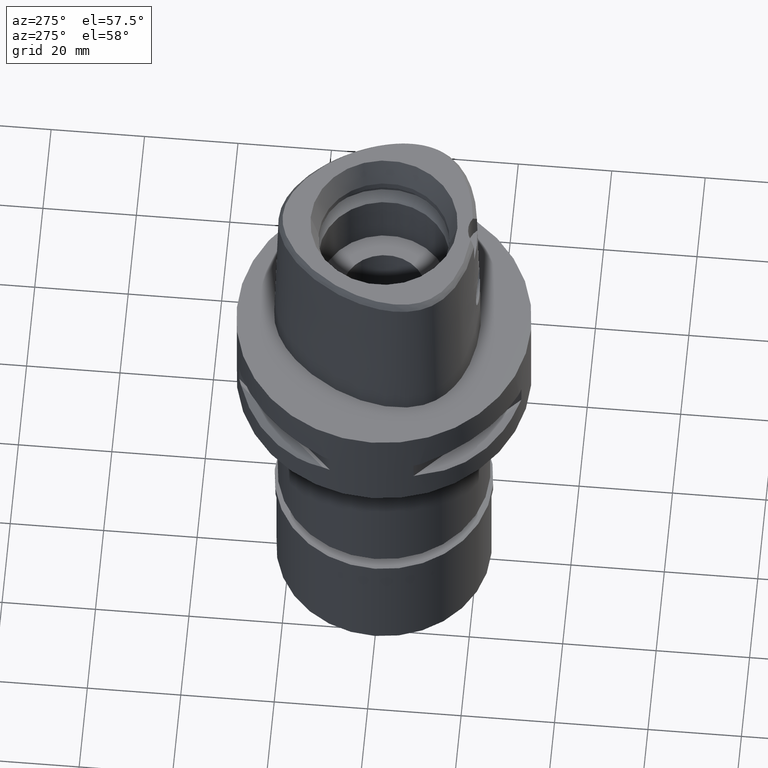
[diagram: clean part render]
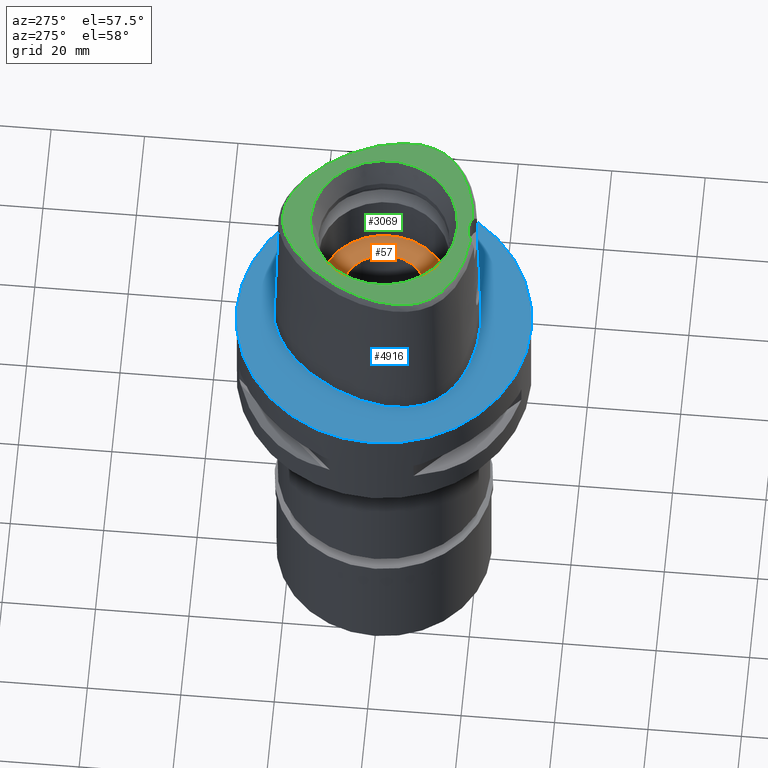
[diagram: same view with three faces highlighted in distinct colors, each labeled with its STEP entity id]
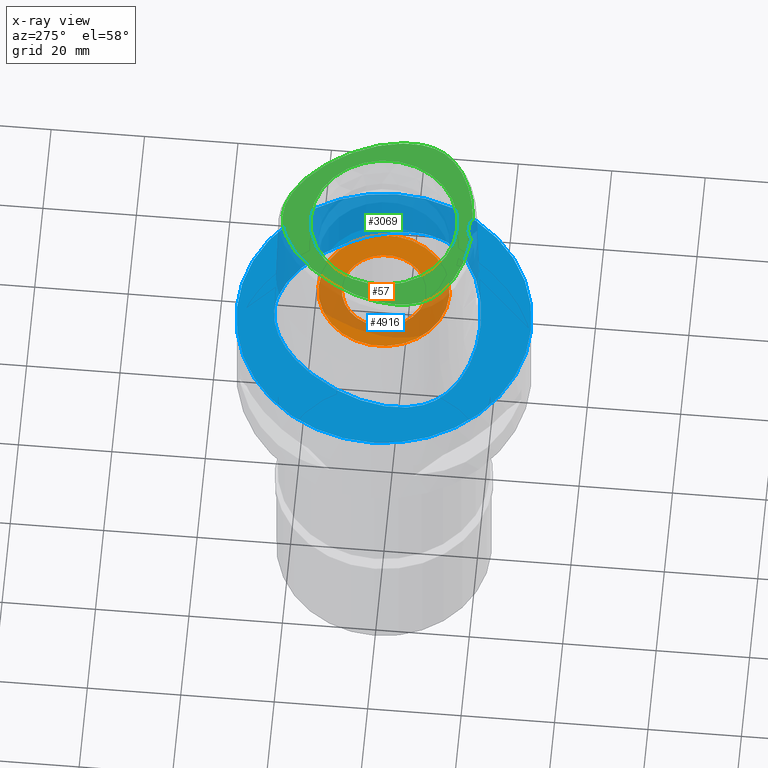
[diagram: x-ray of the same camera — body ghosted, the three highlighted faces saturated]
A machine part, auxiliary view with three faces highlighted in distinct colors.
The next image is the same camera in x-ray (body ghosted, the three faces saturated) — at least one of them is partly hidden behind the body in this view.
Their STEP definitions:

[orange] entity #57 — the highlighted planar face has unit normal (0, 0, -1).
#57 = ADVANCED_FACE ( 'NONE', ( #2623, #292 ), #1854, .F. ) ;
#292 = FACE_BOUND ( 'NONE', #1363, .T. ) ;
#345 = ORIENTED_EDGE ( 'NONE', *, *, #1465, .F. ) ;
#821 = EDGE_CURVE ( 'NONE', #4076, #2327, #2820, .T. ) ;
#1003 = CARTESIAN_POINT ( 'NONE',  ( 0.0000000000000000000, -9.000000000000000000, 11.00000000000000000 ) ) ;
#1166 = DIRECTION ( 'NONE',  ( 0.0000000000000000000, -1.000000000000000000, 0.0000000000000000000 ) ) ;
#1208 = DIRECTION ( 'NONE',  ( 0.0000000000000000000, 0.0000000000000000000, 1.000000000000000000 ) ) ;
#1234 = CIRCLE ( 'NONE', #2144, 14.00000000000000000 ) ;
#1295 = EDGE_CURVE ( 'NONE', #1314, #1390, #1234, .T. ) ;
#1314 = VERTEX_POINT ( 'NONE', #3763 ) ;
#1363 = EDGE_LOOP ( 'NONE', ( #4913, #3214 ) ) ;
#1390 = VERTEX_POINT ( 'NONE', #4372 ) ;
#1407 = CARTESIAN_POINT ( 'NONE',  ( 0.0000000000000000000, 0.0000000000000000000, 11.00000000000000000 ) ) ;
#1447 = CARTESIAN_POINT ( 'NONE',  ( 0.0000000000000000000, 9.000000000000000000, 11.00000000000000000 ) ) ;
#1465 = EDGE_CURVE ( 'NONE', #1390, #1314, #4838, .T. ) ;
#1560 = EDGE_CURVE ( 'NONE', #2327, #4076, #3577, .T. ) ;
#1805 = CARTESIAN_POINT ( 'NONE',  ( 0.0000000000000000000, 0.0000000000000000000, 11.00000000000000000 ) ) ;
#1854 = PLANE ( 'NONE',  #2412 ) ;
#1875 = CARTESIAN_POINT ( 'NONE',  ( 0.0000000000000000000, 0.0000000000000000000, 11.00000000000000000 ) ) ;
#1920 = AXIS2_PLACEMENT_3D ( 'NONE', #4339, #1208, #3209 ) ;
#2144 = AXIS2_PLACEMENT_3D ( 'NONE', #1407, #2957, #2260 ) ;
#2234 = AXIS2_PLACEMENT_3D ( 'NONE', #3443, #4247, #1166 ) ;
#2260 = DIRECTION ( 'NONE',  ( 0.0000000000000000000, -1.000000000000000000, 0.0000000000000000000 ) ) ;
#2327 = VERTEX_POINT ( 'NONE', #1003 ) ;
#2412 = AXIS2_PLACEMENT_3D ( 'NONE', #1875, #2703, #3380 ) ;
#2623 = FACE_OUTER_BOUND ( 'NONE', #3639, .T. ) ;
#2703 = DIRECTION ( 'NONE',  ( 0.0000000000000000000, 0.0000000000000000000, -1.000000000000000000 ) ) ;
#2820 = CIRCLE ( 'NONE', #1920, 9.000000000000000000 ) ;
#2957 = DIRECTION ( 'NONE',  ( 0.0000000000000000000, 0.0000000000000000000, -1.000000000000000000 ) ) ;
#2979 = DIRECTION ( 'NONE',  ( 0.0000000000000000000, 1.000000000000000000, 0.0000000000000000000 ) ) ;
#3209 = DIRECTION ( 'NONE',  ( 0.0000000000000000000, 1.000000000000000000, 0.0000000000000000000 ) ) ;
#3214 = ORIENTED_EDGE ( 'NONE', *, *, #821, .F. ) ;
#3380 = DIRECTION ( 'NONE',  ( 0.0000000000000000000, -1.000000000000000000, 0.0000000000000000000 ) ) ;
#3443 = CARTESIAN_POINT ( 'NONE',  ( 0.0000000000000000000, 0.0000000000000000000, 11.00000000000000000 ) ) ;
#3577 = CIRCLE ( 'NONE', #2234, 9.000000000000000000 ) ;
#3639 = EDGE_LOOP ( 'NONE', ( #4272, #345 ) ) ;
#3727 = AXIS2_PLACEMENT_3D ( 'NONE', #1805, #4442, #2979 ) ;
#3763 = CARTESIAN_POINT ( 'NONE',  ( 0.0000000000000000000, -14.00000000000000000, 11.00000000000000000 ) ) ;
#4076 = VERTEX_POINT ( 'NONE', #1447 ) ;
#4247 = DIRECTION ( 'NONE',  ( 0.0000000000000000000, 0.0000000000000000000, 1.000000000000000000 ) ) ;
#4272 = ORIENTED_EDGE ( 'NONE', *, *, #1295, .F. ) ;
#4339 = CARTESIAN_POINT ( 'NONE',  ( 0.0000000000000000000, 0.0000000000000000000, 11.00000000000000000 ) ) ;
#4372 = CARTESIAN_POINT ( 'NONE',  ( 0.0000000000000000000, 14.00000000000000000, 11.00000000000000000 ) ) ;
#4442 = DIRECTION ( 'NONE',  ( 0.0000000000000000000, 0.0000000000000000000, -1.000000000000000000 ) ) ;
#4838 = CIRCLE ( 'NONE', #3727, 14.00000000000000000 ) ;
#4913 = ORIENTED_EDGE ( 'NONE', *, *, #1560, .F. ) ;

[blue] entity #4916 — the highlighted planar face has unit normal (0, 0, -1).
#37 = CARTESIAN_POINT ( 'NONE',  ( 20.93173253054598959, -10.60431640999530423, -3.683900112044780073E-07 ) ) ;
#252 = CARTESIAN_POINT ( 'NONE',  ( -19.64947365048212546, -12.82525390031862322, 4.026046259342132977E-07 ) ) ;
#310 = CARTESIAN_POINT ( 'NONE',  ( 0.0000000000000000000, 0.0000000000000000000, 0.0000000000000000000 ) ) ;
#335 = CARTESIAN_POINT ( 'NONE',  ( 0.8548392429611767485, 23.47500000921093388, -3.683900112044780073E-07 ) ) ;
#424 = CIRCLE ( 'NONE', #1725, 31.50000000000000000 ) ;
#430 = CARTESIAN_POINT ( 'NONE',  ( 16.95889173165912212, -15.67838867914221268, -3.683900112044780073E-07 ) ) ;
#481 = CARTESIAN_POINT ( 'NONE',  ( 5.790292379824000158E-11, 23.47499999999000053, 1.448100898452999714E-13 ) ) ;
#506 = CARTESIAN_POINT ( 'NONE',  ( -20.93173251290741277, -10.60431640215420046, 4.026046259342132977E-07 ) ) ;
#656 = DIRECTION ( 'NONE',  ( 0.0000000000000000000, 0.0000000000000000000, -1.000000000000000000 ) ) ;
#742 = CARTESIAN_POINT ( 'NONE',  ( 22.05732875237952229, -6.847636720065677807, -3.683900112044780073E-07 ) ) ;
#890 = CARTESIAN_POINT ( 'NONE',  ( -22.05732873321290199, -6.847636717311719856, 4.026046259342132977E-07 ) ) ;
#950 = CARTESIAN_POINT ( 'NONE',  ( -14.40795638184702909, 15.64093749346970341, 4.026046259342132977E-07 ) ) ;
#971 = CARTESIAN_POINT ( 'NONE',  ( -14.67337963919815991, -17.21410155373228790, 4.026046259342132977E-07 ) ) ;
#996 = DIRECTION ( 'NONE',  ( 0.0000000000000000000, -1.000000000000000000, 0.0000000000000000000 ) ) ;
#1112 = EDGE_CURVE ( 'NONE', #3914, #3750, #1158, .T. ) ;
#1135 = VERTEX_POINT ( 'NONE', #3395 ) ;
#1153 = EDGE_CURVE ( 'NONE', #1135, #3385, #424, .T. ) ;
#1158 = B_SPLINE_CURVE_WITH_KNOTS ( 'NONE', 3,
 ( #481, #2861, #1659, #1324, #2884, #4378, #950, #3197, #2843, #3632, #4329, #890, #2123, #506, #2075, #252, #3006, #1868, #971, #4452, #4903, #4480, #2199 ),
 .UNSPECIFIED., .F., .F.,
 ( 4, 1, 1, 1, 1, 1, 1, 1, 1, 1, 1, 1, 1, 1, 1, 1, 1, 1, 1, 1, 4 ),
 ( 0.0000000000000000000, 0.04166666666755999837, 0.08333333333417000666, 0.1250000000007999990, 0.1666666666674000152, 0.2500000000006000200, 0.3333333333337999971, 0.4166666666671000052, 0.5000000000004000134, 0.5416666666670000296, 0.5833333333336000459, 0.6250000000001999512, 0.6458333333335000148, 0.6666666666668999985, 0.6875000000001000311, 0.7083333333333999837, 0.7500000000001000311, 0.7916666666667000474, 0.8333333333333000637, 0.9166666666666000163, 1.000000000000000000 ),
 .UNSPECIFIED. ) ;
#1170 = CARTESIAN_POINT ( 'NONE',  ( 18.56841065812985647, -14.16937988916094859, -3.683900112044780073E-07 ) ) ;
#1190 = CARTESIAN_POINT ( 'NONE',  ( 20.34961799355907175, -11.74885742648655196, -3.683900112044780073E-07 ) ) ;
#1293 = FACE_BOUND ( 'NONE', #3506, .T. ) ;
#1307 = ORIENTED_EDGE ( 'NONE', *, *, #1153, .F. ) ;
#1324 = CARTESIAN_POINT ( 'NONE',  ( -5.098437013526791795, 22.52602538124561349, 4.026046259342132977E-07 ) ) ;
#1362 = EDGE_CURVE ( 'NONE', #3750, #3914, #1754, .T. ) ;
#1514 = CARTESIAN_POINT ( 'NONE',  ( 10.74572891654371531, 19.17433594459337698, -3.683900112044780073E-07 ) ) ;
#1581 = CARTESIAN_POINT ( 'NONE',  ( 18.06826689328364210, 10.43171875463482223, -3.683900112044780073E-07 ) ) ;
#1631 = CARTESIAN_POINT ( 'NONE',  ( 0.0000000000000000000, 31.50000000000000000, 0.0000000000000000000 ) ) ;
#1659 = CARTESIAN_POINT ( 'NONE',  ( -2.564517724888109917, 23.29328124008968004, 4.026046259342132977E-07 ) ) ;
#1725 = AXIS2_PLACEMENT_3D ( 'NONE', #310, #656, #996 ) ;
#1754 = B_SPLINE_CURVE_WITH_KNOTS ( 'NONE', 3,
 ( #3845, #4252, #4597, #3805, #3827, #430, #1170, #2696, #1190, #37, #3447, #742, #2307, #4928, #3051, #1581, #2741, #1514, #1893, #3868, #3121, #335, #4232 ),
 .UNSPECIFIED., .F., .F.,
 ( 4, 1, 1, 1, 1, 1, 1, 1, 1, 1, 1, 1, 1, 1, 1, 1, 1, 1, 1, 1, 4 ),
 ( 0.0000000000000000000, 0.08333333333344000726, 0.1666666666668000230, 0.2083333333333000081, 0.2500000000000000000, 0.2916666666666999919, 0.3125000000000000000, 0.3333333333333000081, 0.3541666666666999919, 0.3750000000000000000, 0.4166666666666000163, 0.4583333333332000326, 0.4999999999998999689, 0.5833333333332000326, 0.6666666666664999852, 0.7499999999998000488, 0.8333333333329999704, 0.8749999999997000177, 0.9166666666664000651, 0.9583333333329999704, 1.000000000000000000 ),
 .UNSPECIFIED. ) ;
#1862 = EDGE_CURVE ( 'NONE', #3385, #1135, #3429, .T. ) ;
#1868 = CARTESIAN_POINT ( 'NONE',  ( -16.95889171968835640, -15.67838866392945718, 4.026046259342132977E-07 ) ) ;
#1893 = CARTESIAN_POINT ( 'NONE',  ( 7.571159439016390102, 21.31457032046966660, -3.683900112044780073E-07 ) ) ;
#2073 = CARTESIAN_POINT ( 'NONE',  ( -1.131694550465999992E-11, -20.67499999999999716, 1.477336771434999891E-13 ) ) ;
#2075 = CARTESIAN_POINT ( 'NONE',  ( -20.34961797683439855, -11.74885741682672169, 4.026046259342132977E-07 ) ) ;
#2123 = CARTESIAN_POINT ( 'NONE',  ( -21.55524825041666048, -8.996025387747538460, 4.026046259342132977E-07 ) ) ;
#2159 = ORIENTED_EDGE ( 'NONE', *, *, #1362, .F. ) ;
#2199 = CARTESIAN_POINT ( 'NONE',  ( -1.131694550465999992E-11, -20.67499999999999716, 1.477336771434999891E-13 ) ) ;
#2307 = CARTESIAN_POINT ( 'NONE',  ( 22.24453908778256661, -4.100468749945640035, -3.683900112044780073E-07 ) ) ;
#2558 = FACE_OUTER_BOUND ( 'NONE', #2875, .T. ) ;
#2696 = CARTESIAN_POINT ( 'NONE',  ( 19.64947366609843371, -12.82525391167557771, -3.683900112044780073E-07 ) ) ;
#2741 = CARTESIAN_POINT ( 'NONE',  ( 14.40795639665963357, 15.64093750597916532, -3.683900112044780073E-07 ) ) ;
#2825 = ORIENTED_EDGE ( 'NONE', *, *, #1112, .F. ) ;
#2843 = CARTESIAN_POINT ( 'NONE',  ( -20.74942739927268320, 4.657187496567886775, 4.026046259342132977E-07 ) ) ;
#2857 = PLANE ( 'NONE',  #3880 ) ;
#2861 = CARTESIAN_POINT ( 'NONE',  ( -0.8548392415864773941, 23.47499998994174675, 4.026046259342132977E-07 ) ) ;
#2875 = EDGE_LOOP ( 'NONE', ( #3887, #1307 ) ) ;
#2881 = AXIS2_PLACEMENT_3D ( 'NONE', #3766, #3682, #4799 ) ;
#2884 = CARTESIAN_POINT ( 'NONE',  ( -7.571159429252344530, 21.31457030378234663, 4.026046259342132977E-07 ) ) ;
#2925 = DIRECTION ( 'NONE',  ( 0.0000000000000000000, 0.0000000000000000000, -1.000000000000000000 ) ) ;
#3006 = CARTESIAN_POINT ( 'NONE',  ( -18.56841064408797237, -14.16937987586342196, 4.026046259342132977E-07 ) ) ;
#3051 = CARTESIAN_POINT ( 'NONE',  ( 20.74942741751540254, 4.657187503139859963, -3.683900112044780073E-07 ) ) ;
#3121 = CARTESIAN_POINT ( 'NONE',  ( 2.564517728849268430, 23.29328125907017721, -3.683900112044780073E-07 ) ) ;
#3197 = CARTESIAN_POINT ( 'NONE',  ( -18.06826687651420471, 10.43171874494323426, 4.026046259342132977E-07 ) ) ;
#3385 = VERTEX_POINT ( 'NONE', #1631 ) ;
#3395 = CARTESIAN_POINT ( 'NONE',  ( 0.0000000000000000000, -31.50000000000000000, 0.0000000000000000000 ) ) ;
#3429 = CIRCLE ( 'NONE', #2881, 31.50000000000000000 ) ;
#3447 = CARTESIAN_POINT ( 'NONE',  ( 21.55524826895371149, -8.996025393257914615, -3.683900112044780073E-07 ) ) ;
#3506 = EDGE_LOOP ( 'NONE', ( #2825, #2159 ) ) ;
#3632 = CARTESIAN_POINT ( 'NONE',  ( -21.97832646790009292, -0.2810937517609410907, 4.026046259342132977E-07 ) ) ;
#3682 = DIRECTION ( 'NONE',  ( 0.0000000000000000000, 0.0000000000000000000, -1.000000000000000000 ) ) ;
#3750 = VERTEX_POINT ( 'NONE', #2073 ) ;
#3766 = CARTESIAN_POINT ( 'NONE',  ( 0.0000000000000000000, 0.0000000000000000000, 0.0000000000000000000 ) ) ;
#3805 = CARTESIAN_POINT ( 'NONE',  ( 11.23259757044373508, -18.89324219620272061, -3.683900112044780073E-07 ) ) ;
#3827 = CARTESIAN_POINT ( 'NONE',  ( 14.67337964876933931, -17.21410157052679324, -3.683900112044780073E-07 ) ) ;
#3845 = CARTESIAN_POINT ( 'NONE',  ( -1.131694550465999992E-11, -20.67499999999999716, 1.477336771434999891E-13 ) ) ;
#3868 = CARTESIAN_POINT ( 'NONE',  ( 5.098437020721408253, 22.52602539921558034, -3.683900112044780073E-07 ) ) ;
#3880 = AXIS2_PLACEMENT_3D ( 'NONE', #4741, #2925, #4019 ) ;
#3887 = ORIENTED_EDGE ( 'NONE', *, *, #1862, .F. ) ;
#3914 = VERTEX_POINT ( 'NONE', #4821 ) ;
#4019 = DIRECTION ( 'NONE',  ( 0.0000000000000000000, -1.000000000000000000, 0.0000000000000000000 ) ) ;
#4232 = CARTESIAN_POINT ( 'NONE',  ( 5.790292379824000158E-11, 23.47499999999000053, 1.448100898452999714E-13 ) ) ;
#4252 = CARTESIAN_POINT ( 'NONE',  ( 2.113823673614410925, -20.67500000920435355, -3.683900112044780073E-07 ) ) ;
#4329 = CARTESIAN_POINT ( 'NONE',  ( -22.24453906844714624, -4.100468750059308221, 4.026046259342132977E-07 ) ) ;
#4378 = CARTESIAN_POINT ( 'NONE',  ( -10.74572890407997683, 19.17433592974781220, 4.026046259342132977E-07 ) ) ;
#4452 = CARTESIAN_POINT ( 'NONE',  ( -11.23259756381914087, -18.89324217799171635, 4.026046259342132977E-07 ) ) ;
#4480 = CARTESIAN_POINT ( 'NONE',  ( -2.113823672466968784, -20.67499998993794108, 4.026046259342132977E-07 ) ) ;
#4597 = CARTESIAN_POINT ( 'NONE',  ( 6.341471020848075568, -20.29812500912274231, -3.683900112044780073E-07 ) ) ;
#4741 = CARTESIAN_POINT ( 'NONE',  ( 0.0000000000000000000, 0.0000000000000000000, 0.0000000000000000000 ) ) ;
#4799 = DIRECTION ( 'NONE',  ( 0.0000000000000000000, 1.000000000000000000, 0.0000000000000000000 ) ) ;
#4821 = CARTESIAN_POINT ( 'NONE',  ( 5.790292379824000158E-11, 23.47499999999000053, 1.448100898452999714E-13 ) ) ;
#4903 = CARTESIAN_POINT ( 'NONE',  ( -6.341471017423541134, -20.29812499004066950, 4.026046259342132977E-07 ) ) ;
#4916 = ADVANCED_FACE ( 'NONE', ( #2558, #1293 ), #2857, .F. ) ;
#4928 = CARTESIAN_POINT ( 'NONE',  ( 21.97832648698838653, -0.2810937483887103738, -3.683900112044780073E-07 ) ) ;

[green] entity #3069 — the highlighted planar face has unit normal (0, 0, 1).
#7 = CARTESIAN_POINT ( 'NONE',  ( 13.33890749495946082, -15.84912955619473252, 37.99999999999260325 ) ) ;
#76 = VERTEX_POINT ( 'NONE', #4489 ) ;
#92 = CARTESIAN_POINT ( 'NONE',  ( -12.37132652997592253, -16.34104299088263801, 37.99999999999596412 ) ) ;
#112 = CARTESIAN_POINT ( 'NONE',  ( -10.17136073855078138, -17.24644253470266264, 38.00000000000095213 ) ) ;
#159 = CARTESIAN_POINT ( 'NONE',  ( -18.31748213707501804, -11.58791794387733631, 37.99999999999634070 ) ) ;
#183 = CARTESIAN_POINT ( 'NONE',  ( -13.33457781970442113, -15.85148397417248134, 38.00000000000152056 ) ) ;
#245 = CARTESIAN_POINT ( 'NONE',  ( 6.760281394351698836, 19.65404668910019481, 37.99999999999393907 ) ) ;
#255 = DIRECTION ( 'NONE',  ( 0.0000000000000000000, 0.0000000000000000000, 1.000000000000000000 ) ) ;
#273 = CARTESIAN_POINT ( 'NONE',  ( 10.48999540691104038, 16.86597469870106991, 38.00000000000387246 ) ) ;
#286 = CARTESIAN_POINT ( 'NONE',  ( -11.46564124494043746, 15.92741340513062553, 37.99999999999576517 ) ) ;
#299 = CARTESIAN_POINT ( 'NONE',  ( 4.715576077242126019, -18.56597918135396696, 37.99999999999206324 ) ) ;
#351 = CARTESIAN_POINT ( 'NONE',  ( 18.79595068776229994, 4.257753965102050842, 37.99999999999678124 ) ) ;
#400 = CARTESIAN_POINT ( 'NONE',  ( 19.94150023627998181, 0.2261566111946440860, 38.00000000000292033 ) ) ;
#419 = CARTESIAN_POINT ( 'NONE',  ( 0.0000000000000000000, -23.00000000000000000, 38.00000000000000000 ) ) ;
#484 = CARTESIAN_POINT ( 'NONE',  ( -2.682279906006999948, -18.78035848609999903, 38.00000000000000000 ) ) ;
#534 = CARTESIAN_POINT ( 'NONE',  ( -6.188376196366788484, -18.31830638231839004, 37.99999999999528200 ) ) ;
#571 = CARTESIAN_POINT ( 'NONE',  ( -3.470663397156000320E-11, 21.68728795390000030, 38.00000000000000000 ) ) ;
#602 = CARTESIAN_POINT ( 'NONE',  ( 3.482188079160203120, 21.13472718027299635, 37.99999999999566569 ) ) ;
#611 = CARTESIAN_POINT ( 'NONE',  ( -19.94188961899538981, 0.2242544969875431282, 38.00000000000132871 ) ) ;
#634 = CARTESIAN_POINT ( 'NONE',  ( -14.34402387965755921, 12.54761970512386959, 38.00000000000101608 ) ) ;
#637 = ORIENTED_EDGE ( 'NONE', *, *, #1797, .F. ) ;
#651 = CARTESIAN_POINT ( 'NONE',  ( 9.524842839488572466, 17.70516372194705212, 37.99999999999959499 ) ) ;
#657 = CIRCLE ( 'NONE', #2632, 15.71487483155999776 ) ;
#659 = CARTESIAN_POINT ( 'NONE',  ( -7.655222869371539396, 19.09452359226523654, 37.99999999999497646 ) ) ;
#676 = CARTESIAN_POINT ( 'NONE',  ( 20.38292172607750175, -3.276278498261604444, 37.99999999999442224 ) ) ;
#687 = VERTEX_POINT ( 'NONE', #2946 ) ;
#695 = ORIENTED_EDGE ( 'NONE', *, *, #2170, .F. ) ;
#708 = CARTESIAN_POINT ( 'NONE',  ( 18.31883910943124505, -11.58595831188059044, 37.99999999999275246 ) ) ;
#733 = CARTESIAN_POINT ( 'NONE',  ( 20.15982952132045014, -1.007721426051377156, 37.99999999999801048 ) ) ;
#735 = EDGE_CURVE ( 'NONE', #3203, #687, #3967, .T. ) ;
#747 = AXIS2_PLACEMENT_3D ( 'NONE', #2568, #4057, #3316 ) ;
#892 = CARTESIAN_POINT ( 'NONE',  ( -17.91005512243885889, -12.13778127739600166, 37.99999999999938893 ) ) ;
#920 = CARTESIAN_POINT ( 'NONE',  ( -8.930096025510319890, -17.65000298921263422, 37.99999999999889866 ) ) ;
#952 = CARTESIAN_POINT ( 'NONE',  ( -20.38301517463061785, -3.278344853328291286, 37.99999999999911182 ) ) ;
#999 = FACE_BOUND ( 'NONE', #2001, .T. ) ;
#1053 = CARTESIAN_POINT ( 'NONE',  ( -10.48962422759182900, 16.86631853279407167, 38.00000000000438405 ) ) ;
#1066 = CARTESIAN_POINT ( 'NONE',  ( 18.67722910598283903, -11.03372143228491353, 38.00000000000095923 ) ) ;
#1095 = CARTESIAN_POINT ( 'NONE',  ( 3.529311563348269676, -18.70747079909999755, 38.00000000000121503 ) ) ;
#1143 = CARTESIAN_POINT ( 'NONE',  ( 19.78323211893031441, -8.541156231035326840, 37.99999999999771205 ) ) ;
#1229 = DIRECTION ( 'NONE',  ( 0.0000000000000000000, 0.0000000000000000000, 1.000000000000000000 ) ) ;
#1244 = CIRCLE ( 'NONE', #2962, 15.71487483155999776 ) ;
#1250 = AXIS2_PLACEMENT_3D ( 'NONE', #419, #1229, #3087 ) ;
#1278 = CARTESIAN_POINT ( 'NONE',  ( -16.36032397153661933, -13.76458520345065928, 38.00000000000331113 ) ) ;
#1300 = CARTESIAN_POINT ( 'NONE',  ( -19.54919922642046970, -9.228169790568490072, 38.00000000000421352 ) ) ;
#1440 = CARTESIAN_POINT ( 'NONE',  ( -19.26324493738847465, 2.868570891456926120, 38.00000000000517986 ) ) ;
#1456 = CARTESIAN_POINT ( 'NONE',  ( 18.99619228226644907, -10.46780014453393726, 37.99999999999373301 ) ) ;
#1464 = CARTESIAN_POINT ( 'NONE',  ( -19.64434054693132836, 1.520253387635282838, 37.99999999999818812 ) ) ;
#1481 = CARTESIAN_POINT ( 'NONE',  ( 20.30478359881725936, -2.175347700950375884, 37.99999999999636913 ) ) ;
#1490 = CARTESIAN_POINT ( 'NONE',  ( -5.893543501601000045, 20.13235399352068100, 38.00000000000499512 ) ) ;
#1506 = CARTESIAN_POINT ( 'NONE',  ( 10.17751632998299449, -17.24426134458749615, 37.99999999999722178 ) ) ;
#1548 = CARTESIAN_POINT ( 'NONE',  ( 6.196495988003671407, -18.31673538865212691, 37.99999999999739941 ) ) ;
#1638 = CARTESIAN_POINT ( 'NONE',  ( -18.67608643721371919, -11.03561202291037802, 38.00000000000368061 ) ) ;
#1663 = CARTESIAN_POINT ( 'NONE',  ( -14.21001600787407604, -15.34519100085834609, 38.00000000000028422 ) ) ;
#1686 = CARTESIAN_POINT ( 'NONE',  ( -16.93638123745061108, -13.22593246128015743, 37.99999999999821654 ) ) ;
#1705 = CARTESIAN_POINT ( 'NONE',  ( -18.99520880203717965, -10.46968343925968448, 38.00000000000205347 ) ) ;
#1767 = ORIENTED_EDGE ( 'NONE', *, *, #735, .F. ) ;
#1783 = CARTESIAN_POINT ( 'NONE',  ( -8.578220530113444653, 18.44656747109421246, 38.00000000000587619 ) ) ;
#1784 = FACE_OUTER_BOUND ( 'NONE', #3499, .T. ) ;
#1792 = VERTEX_POINT ( 'NONE', #3271 ) ;
#1797 = EDGE_CURVE ( 'NONE', #1792, #3203, #4614, .T. ) ;
#1814 = CARTESIAN_POINT ( 'NONE',  ( -18.79649882724537591, 4.256255933891296195, 37.99999999999789679 ) ) ;
#1847 = CARTESIAN_POINT ( 'NONE',  ( -9.524337278001096863, 17.70558492631262482, 38.00000000000197531 ) ) ;
#1861 = CARTESIAN_POINT ( 'NONE',  ( 20.40062138794955615, -4.309334958867887977, 38.00000000000271427 ) ) ;
#1870 = CARTESIAN_POINT ( 'NONE',  ( -6.759433772716949562, 19.65454812512999894, 37.99999999999428013 ) ) ;
#1909 = CARTESIAN_POINT ( 'NONE',  ( 13.40430406168697353, 13.76274261013511158, 38.00000000000053291 ) ) ;
#1911 = CIRCLE ( 'NONE', #1250, 5.000000000000000888 ) ;
#1925 = EDGE_CURVE ( 'NONE', #76, #4344, #1244, .T. ) ;
#1956 = CARTESIAN_POINT ( 'NONE',  ( 19.54993126781717550, -9.226212439886353422, 37.99999999999423039 ) ) ;
#1966 = CARTESIAN_POINT ( 'NONE',  ( -3.470663397156000320E-11, 21.68728795390000030, 38.00000000000000000 ) ) ;
#2001 = EDGE_LOOP ( 'NONE', ( #4336, #2540 ) ) ;
#2048 = CARTESIAN_POINT ( 'NONE',  ( -2.841965291530441196, -18.76757795571486298, 37.99999999999776890 ) ) ;
#2125 = CARTESIAN_POINT ( 'NONE',  ( -4.706994425064818799, -18.56721852572750819, 38.00000000000219558 ) ) ;
#2140 = CARTESIAN_POINT ( 'NONE',  ( 0.6513209347955639661, 21.67370899611953661, 37.99999999999931077 ) ) ;
#2151 = CARTESIAN_POINT ( 'NONE',  ( -17.60426951086705927, 7.098774535280972131, 37.99999999999651124 ) ) ;
#2165 = CARTESIAN_POINT ( 'NONE',  ( 4.255661039972462589, 20.86618068829741901, 37.99999999999237588 ) ) ;
#2170 = EDGE_CURVE ( 'NONE', #687, #1792, #1911, .T. ) ;
#2176 = CARTESIAN_POINT ( 'NONE',  ( -18.24302769442231664, 5.671232572957991991, 37.99999999999904077 ) ) ;
#2229 = CARTESIAN_POINT ( 'NONE',  ( -3.481017203588835596, 21.13509756881371615, 37.99999999999744915 ) ) ;
#2251 = CARTESIAN_POINT ( 'NONE',  ( 20.15127154947656507, -7.022178451341295258, 37.99999999999887024 ) ) ;
#2262 = CARTESIAN_POINT ( 'NONE',  ( -4.254559144977184459, 20.86660163697170844, 37.99999999999787548 ) ) ;
#2275 = CARTESIAN_POINT ( 'NONE',  ( 12.44125753246769861, 14.89118158853800189, 37.99999999999828759 ) ) ;
#2302 = CARTESIAN_POINT ( 'NONE',  ( 19.64387775267994840, 1.522048414458169407, 37.99999999999673150 ) ) ;
#2492 = CARTESIAN_POINT ( 'NONE',  ( -19.78262210840519231, -8.543146992552278718, 38.00000000000375167 ) ) ;
#2540 = ORIENTED_EDGE ( 'NONE', *, *, #3155, .F. ) ;
#2568 = CARTESIAN_POINT ( 'NONE',  ( 0.0000000000000000000, 0.0000000000000000000, 38.00000000000000000 ) ) ;
#2616 = CARTESIAN_POINT ( 'NONE',  ( -16.09805956313646647, 9.908742513515903738, 38.00000000000504485 ) ) ;
#2632 = AXIS2_PLACEMENT_3D ( 'NONE', #4556, #4601, #2699 ) ;
#2634 = CARTESIAN_POINT ( 'NONE',  ( 12.37622418509545419, -16.33871033285776520, 37.99999999999362643 ) ) ;
#2687 = CARTESIAN_POINT ( 'NONE',  ( 11.46587147800392792, 15.92717600803286793, 37.99999999999534595 ) ) ;
#2699 = DIRECTION ( 'NONE',  ( 0.0000000000000000000, 1.000000000000000000, 0.0000000000000000000 ) ) ;
#2822 = CARTESIAN_POINT ( 'NONE',  ( 0.0000000000000000000, 15.71487483155999776, 38.00000000000000000 ) ) ;
#2845 = CARTESIAN_POINT ( 'NONE',  ( -11.31790883121283819, -16.80796958613265701, 38.00000000000092371 ) ) ;
#2888 = CARTESIAN_POINT ( 'NONE',  ( -20.36398648679710277, -5.278470727084991765, 38.00000000000122924 ) ) ;
#2946 = CARTESIAN_POINT ( 'NONE',  ( 2.682287482605000051, -18.78036330228999873, 38.00000000000000000 ) ) ;
#2962 = AXIS2_PLACEMENT_3D ( 'NONE', #3706, #255, #4555 ) ;
#2978 = CARTESIAN_POINT ( 'NONE',  ( 8.578848111817118038, 18.44609846598800829, 37.99999999999103295 ) ) ;
#2999 = CARTESIAN_POINT ( 'NONE',  ( 18.24247239569453427, 5.672548708072636892, 37.99999999999933209 ) ) ;
#3021 = CARTESIAN_POINT ( 'NONE',  ( 16.93855157777549891, -13.22377441789193320, 37.99999999999644018 ) ) ;
#3031 = CARTESIAN_POINT ( 'NONE',  ( -3.470663397156000320E-11, 21.68728795390000030, 38.00000000000000000 ) ) ;
#3069 = ADVANCED_FACE ( 'NONE', ( #1784, #999 ), #4531, .T. ) ;
#3087 = DIRECTION ( 'NONE',  ( 0.0000000000000000000, 1.000000000000000000, 0.0000000000000000000 ) ) ;
#3091 = CARTESIAN_POINT ( 'NONE',  ( 16.36283630828740243, -13.76236604535038488, 37.99999999999628386 ) ) ;
#3155 = EDGE_CURVE ( 'NONE', #4344, #76, #657, .T. ) ;
#3199 = CARTESIAN_POINT ( 'NONE',  ( -15.00295592773848874, -14.82617991125743373, 37.99999999999844391 ) ) ;
#3203 = VERTEX_POINT ( 'NONE', #1966 ) ;
#3223 = CARTESIAN_POINT ( 'NONE',  ( -17.45119705494144213, -12.68365517585225355, 38.00000000000433431 ) ) ;
#3243 = CARTESIAN_POINT ( 'NONE',  ( -20.27898581532202371, -6.181921586189851325, 37.99999999999830180 ) ) ;
#3271 = CARTESIAN_POINT ( 'NONE',  ( -2.682279906006999948, -18.78035848609999903, 38.00000000000000000 ) ) ;
#3281 = CARTESIAN_POINT ( 'NONE',  ( 0.2185816947241204233, 21.68728795389776920, 38.00000000000068212 ) ) ;
#3292 = CARTESIAN_POINT ( 'NONE',  ( -0.2181979014508406423, 21.68728795389353081, 37.99999999999917577 ) ) ;
#3314 = CARTESIAN_POINT ( 'NONE',  ( -2.735698246182924898, 21.34559102902491290, 38.00000000000041922 ) ) ;
#3316 = DIRECTION ( 'NONE',  ( 1.000000000000000000, 0.0000000000000000000, 0.0000000000000000000 ) ) ;
#3331 = CARTESIAN_POINT ( 'NONE',  ( 7.655962789343627506, 19.09402979099641939, 38.00000000000136424 ) ) ;
#3343 = CARTESIAN_POINT ( 'NONE',  ( -12.44116897271045197, 14.89128547409245762, 38.00000000000099476 ) ) ;
#3372 = CARTESIAN_POINT ( 'NONE',  ( -5.058220461389395517, 20.53445508814827392, 38.00000000000176215 ) ) ;
#3388 = CARTESIAN_POINT ( 'NONE',  ( 16.88599964842968859, 8.518708218769956986, 38.00000000000036238 ) ) ;
#3442 = CARTESIAN_POINT ( 'NONE',  ( 14.21382211799403628, -15.34284287400233815, 37.99999999999272404 ) ) ;
#3464 = CARTESIAN_POINT ( 'NONE',  ( 14.34383722811552886, 12.54786717290155451, 37.99999999999827338 ) ) ;
#3499 = EDGE_LOOP ( 'NONE', ( #1767, #637, #695 ) ) ;
#3596 = CARTESIAN_POINT ( 'NONE',  ( -3.522896839653986589, -18.70811514173366419, 37.99999999999855049 ) ) ;
#3646 = CARTESIAN_POINT ( 'NONE',  ( 2.018320379028192502, 21.50256508436565639, 37.99999999999607070 ) ) ;
#3671 = CARTESIAN_POINT ( 'NONE',  ( 5.059249257020841384, 20.53399274678987396, 37.99999999999153744 ) ) ;
#3696 = CARTESIAN_POINT ( 'NONE',  ( 5.894487344450134891, 20.13186406531775319, 37.99999999999562306 ) ) ;
#3706 = CARTESIAN_POINT ( 'NONE',  ( 0.0000000000000000000, 0.0000000000000000000, 38.00000000000000000 ) ) ;
#3736 = CARTESIAN_POINT ( 'NONE',  ( -0.6498990081534585794, 21.67378274708391217, 37.99999999999543832 ) ) ;
#3755 = CARTESIAN_POINT ( 'NONE',  ( 8.936919536467121006, -17.64796721715192263, 37.99999999999680256 ) ) ;
#3799 = CARTESIAN_POINT ( 'NONE',  ( 15.00628712263397979, -14.82385870795080685, 37.99999999999226219 ) ) ;
#3823 = CARTESIAN_POINT ( 'NONE',  ( 17.60373714028138892, 7.099883643193340532, 37.99999999999634781 ) ) ;
#3840 = CARTESIAN_POINT ( 'NONE',  ( 16.09765529146488561, 9.909410920133185030, 37.99999999999399591 ) ) ;
#3967 = B_SPLINE_CURVE_WITH_KNOTS ( 'NONE', 3,
 ( #571, #3281, #2140, #4096, #3646, #4415, #602, #2165, #3671, #3696, #245, #3331, #2978, #651, #273, #2687, #2275, #1909, #3464, #4155, #3840, #3388, #3823, #2999, #351, #4893, #2302, #400, #733, #1481, #676, #1861, #4549, #4872, #2251, #4569, #1143, #1956, #4922, #1456, #1066, #708, #4227, #4495, #3021, #3091, #4520, #3799, #3442, #7, #2634, #4123, #1506, #3755, #4590, #1548, #299, #1095, #4947, #4178 ),
 .UNSPECIFIED., .F., .F.,
 ( 4, 1, 1, 1, 1, 1, 1, 1, 1, 1, 1, 1, 1, 1, 1, 1, 1, 1, 1, 1, 1, 1, 1, 1, 1, 1, 1, 1, 1, 1, 1, 1, 1, 1, 1, 1, 1, 1, 1, 1, 1, 1, 1, 1, 1, 1, 1, 1, 1, 1, 1, 1, 1, 1, 1, 1, 1, 4 ),
 ( 0.0000000000000000000, 0.01775854187129999318, 0.03551708374169992855, 0.05327562561200005486, 0.07103416748239999023, 0.08879270935270000553, 0.1065512512231000519, 0.1243097930933999562, 0.1420683349638000026, 0.1598268768341000179, 0.1775854187044000332, 0.1953439605747999686, 0.2131025024450999839, 0.2308610443155000302, 0.2486195861857999345, 0.2663781280563000120, 0.2841366699266000273, 0.3018952117970000737, 0.3196537536672999780, 0.3374122955377000244, 0.3551708374080000397, 0.3729293792782999439, 0.3906879211486999903, 0.4084464630190000056, 0.4262050048894000520, 0.4439635467596999563, 0.4617220886301000027, 0.4794806305004000180, 0.4972391723707999533, 0.5149977142410999686, 0.5327562561113999839, 0.5505147979818000303, 0.5682733398521000456, 0.5860318817224999810, 0.6037904235927999963, 0.6215489654632000427, 0.6393075073334999470, 0.6570660492038999934, 0.6748245910742000087, 0.6925831329445000240, 0.7103416748149000703, 0.7281002166851999746, 0.7458587585556000210, 0.7636173004259000363, 0.7813758422962999717, 0.7991343841665999870, 0.8168929260370000334, 0.8346514679073000487, 0.8524100097776999840, 0.8701685516479999993, 0.8879270935183000146, 0.9056856353886799660, 0.9234441772589799813, 0.9412027191293600437, 0.9589612609997000270, 0.9767198028700500023, 0.9944783447403919840, 1.000000000000000000 ),
 .UNSPECIFIED. ) ;
#3984 = CARTESIAN_POINT ( 'NONE',  ( -19.98419490691820144, -7.809898894995909835, 37.99999999999928946 ) ) ;
#4003 = CARTESIAN_POINT ( 'NONE',  ( -20.30498420086185973, -2.177378896258517660, 38.00000000000400746 ) ) ;
#4057 = DIRECTION ( 'NONE',  ( 0.0000000000000000000, 0.0000000000000000000, 1.000000000000000000 ) ) ;
#4079 = CARTESIAN_POINT ( 'NONE',  ( -15.24692477332592233, 11.25717358966159232, 38.00000000000646594 ) ) ;
#4096 = CARTESIAN_POINT ( 'NONE',  ( 1.325020189552487349, 21.61081414408857881, 37.99999999999622702 ) ) ;
#4107 = CARTESIAN_POINT ( 'NONE',  ( -13.40435640711864096, 13.76268382997709594, 38.00000000000049027 ) ) ;
#4123 = CARTESIAN_POINT ( 'NONE',  ( 11.32341394162629555, -16.80569392800387973, 37.99999999999065636 ) ) ;
#4155 = CARTESIAN_POINT ( 'NONE',  ( 15.24661770199383959, 11.25762885477936948, 37.99999999999656808 ) ) ;
#4178 = CARTESIAN_POINT ( 'NONE',  ( 2.682287482605000051, -18.78036330228999873, 38.00000000000000000 ) ) ;
#4227 = CARTESIAN_POINT ( 'NONE',  ( 17.91165267838867337, -12.13575389397862558, 37.99999999999858602 ) ) ;
#4331 = CARTESIAN_POINT ( 'NONE',  ( -7.599370508970048732, -18.01010694911470011, 38.00000000000250111 ) ) ;
#4336 = ORIENTED_EDGE ( 'NONE', *, *, #1925, .F. ) ;
#4344 = VERTEX_POINT ( 'NONE', #2822 ) ;
#4381 = CARTESIAN_POINT ( 'NONE',  ( -20.40060226222797368, -4.311417605381736351, 38.00000000000508038 ) ) ;
#4402 = CARTESIAN_POINT ( 'NONE',  ( -19.28591707036693137, -9.869682450886569924, 37.99999999999729994 ) ) ;
#4415 = CARTESIAN_POINT ( 'NONE',  ( 2.736932690726766371, 21.34527940056742779, 37.99999999999858602 ) ) ;
#4489 = CARTESIAN_POINT ( 'NONE',  ( 0.0000000000000000000, -15.71487483155999776, 38.00000000000000000 ) ) ;
#4495 = CARTESIAN_POINT ( 'NONE',  ( 17.45306278053600479, -12.68156296993189791, 38.00000000000063949 ) ) ;
#4505 = CARTESIAN_POINT ( 'NONE',  ( -16.88647904405381084, 8.517821442302606627, 37.99999999999926104 ) ) ;
#4520 = CARTESIAN_POINT ( 'NONE',  ( 15.72078707640685913, -14.29615620309544077, 37.99999999999312905 ) ) ;
#4531 = PLANE ( 'NONE',  #747 ) ;
#4549 = CARTESIAN_POINT ( 'NONE',  ( 20.36412151360891087, -5.276385427453796240, 37.99999999999793232 ) ) ;
#4555 = DIRECTION ( 'NONE',  ( 0.0000000000000000000, -1.000000000000000000, 0.0000000000000000000 ) ) ;
#4556 = CARTESIAN_POINT ( 'NONE',  ( 0.0000000000000000000, 0.0000000000000000000, 38.00000000000000000 ) ) ;
#4569 = CARTESIAN_POINT ( 'NONE',  ( 19.98468477323361725, -7.807876343103433925, 37.99999999999813838 ) ) ;
#4590 = CARTESIAN_POINT ( 'NONE',  ( 7.606839420237614391, -18.00827588386522393, 37.99999999999747757 ) ) ;
#4601 = DIRECTION ( 'NONE',  ( 0.0000000000000000000, 0.0000000000000000000, 1.000000000000000000 ) ) ;
#4614 = B_SPLINE_CURVE_WITH_KNOTS ( 'NONE', 3,
 ( #484, #2048, #3596, #2125, #534, #4331, #920, #112, #2845, #92, #183, #1663, #3199, #4706, #1278, #1686, #3223, #892, #159, #1638, #1705, #4402, #1300, #2492, #3984, #4749, #3243, #2888, #4381, #952, #4003, #4777, #611, #1464, #1440, #1814, #2176, #2151, #4505, #2616, #4079, #634, #4107, #3343, #286, #1053, #1847, #1783, #659, #1870, #1490, #3372, #2262, #2229, #3314, #4859, #4905, #3736, #3292, #3031 ),
 .UNSPECIFIED., .F., .F.,
 ( 4, 1, 1, 1, 1, 1, 1, 1, 1, 1, 1, 1, 1, 1, 1, 1, 1, 1, 1, 1, 1, 1, 1, 1, 1, 1, 1, 1, 1, 1, 1, 1, 1, 1, 1, 1, 1, 1, 1, 1, 1, 1, 1, 1, 1, 1, 1, 1, 1, 1, 1, 1, 1, 1, 1, 1, 1, 4 ),
 ( 0.0000000000000000000, 0.005420919554200098744, 0.02318126027639999531, 0.04094160099879995407, 0.05870194172099996166, 0.07646228244330000035, 0.09422262316550000794, 0.1119829638877999356, 0.1297433046099999432, 0.1475036453321999508, 0.1652639860544999895, 0.1830243267768000281, 0.2007846674991000668, 0.2185450082212999634, 0.2363053489436000021, 0.2540656896658000097, 0.2718260303881000484, 0.2895863711103000560, 0.3073467118325999836, 0.3251070525547999912, 0.3428673932771000299, 0.3606277339994000686, 0.3783880747216000762, 0.3961484154438998928, 0.4139087561661000114, 0.4316690968884000501, 0.4494294376106000577, 0.4671897783328999854, 0.4849501190552000240, 0.5027104597774000316, 0.5204708004996999593, 0.5382311412219000779, 0.5559914819442000056, 0.5737518226664000132, 0.5915121633886999408, 0.6092725041108999484, 0.6270328448331999871, 0.6447931855555000258, 0.6625535262777000334, 0.6803138669999999610, 0.6980742077221999686, 0.7158345484445000073, 0.7335948891667000149, 0.7513552298890000536, 0.7691155706112000612, 0.7868759113336000199, 0.8046362520558000275, 0.8223965927780999552, 0.8401569335002999628, 0.8579172742224999704, 0.8756776149448000091, 0.8934379556670000166, 0.9111982963893099363, 0.9289586371115700070, 0.9467189778338299666, 0.9644793185560800453, 0.9822396592783400049, 1.000000000000000000 ),
 .UNSPECIFIED. ) ;
#4706 = CARTESIAN_POINT ( 'NONE',  ( -15.71788912669088489, -14.29843101565874264, 37.99999999999997868 ) ) ;
#4749 = CARTESIAN_POINT ( 'NONE',  ( -20.15090095364618961, -7.024227649787703420, 38.00000000000282796 ) ) ;
#4777 = CARTESIAN_POINT ( 'NONE',  ( -20.16012968311290621, -1.009698174524596759, 38.00000000000570566 ) ) ;
#4859 = CARTESIAN_POINT ( 'NONE',  ( -2.017025177696709637, 21.50280829367981283, 38.00000000000202505 ) ) ;
#4872 = CARTESIAN_POINT ( 'NONE',  ( 20.27923816685407488, -6.179850483268504391, 38.00000000000188294 ) ) ;
#4893 = CARTESIAN_POINT ( 'NONE',  ( 19.26272899268361272, 2.870227893749648818, 37.99999999999293721 ) ) ;
#4905 = CARTESIAN_POINT ( 'NONE',  ( -1.323674540693823287, 21.61098849315527559, 38.00000000000316902 ) ) ;
#4922 = CARTESIAN_POINT ( 'NONE',  ( 19.28677546797305098, -9.867757137506105281, 37.99999999999853628 ) ) ;
#4947 = CARTESIAN_POINT ( 'NONE',  ( 2.845098933833366761, -18.76733062685934783, 37.99999999999707256 ) ) ;